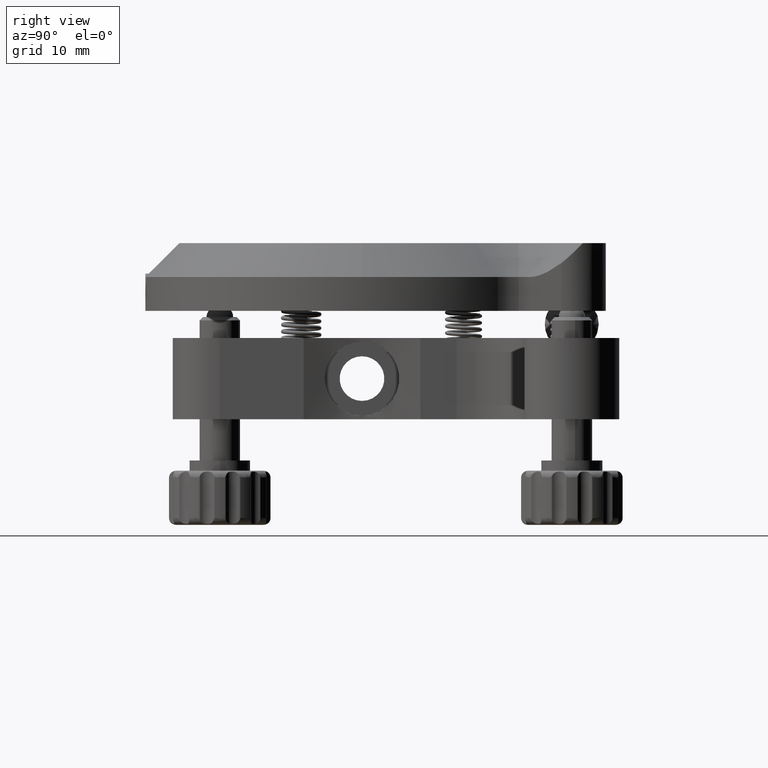
[diagram: clean part render]
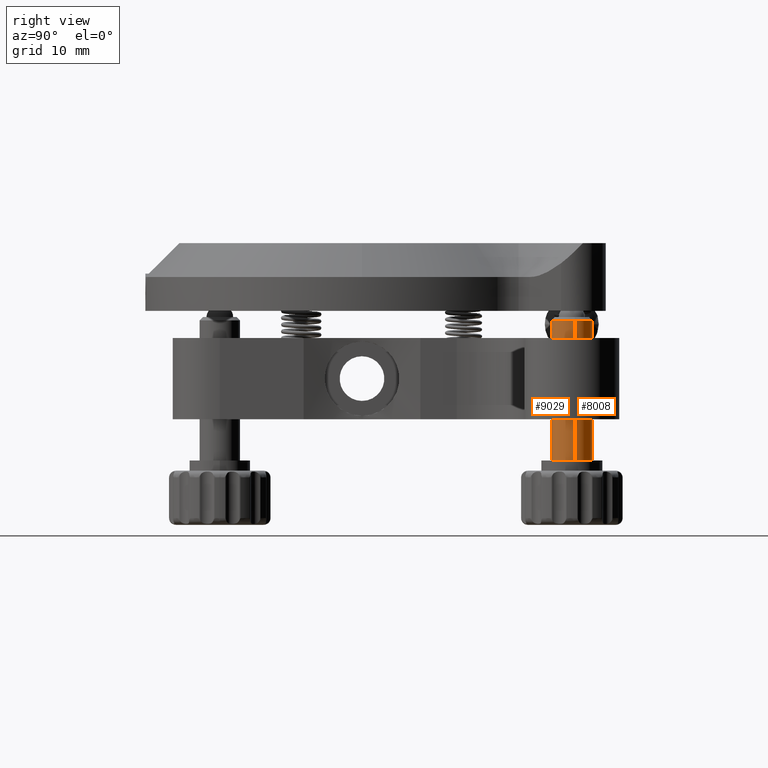
[diagram: same view with one multi-face feature highlighted, each face labeled with its STEP entity id]
A machine part, right view. The highlighted faces form ONE feature: a constant-radius fillet chain: 2 tangent blend faces with common blend radius 3 mm. The faces share edges in the B-rep.
Their STEP definitions:
[1] entity #9029 (Cylinder):
#1432 = DIRECTION ( 'NONE',  ( -1.102570378745549067E-15, -1.856712241625032305E-15, 1.000000000000000000 ) ) ;
#2994 = CIRCLE ( 'NONE', #23470, 3.000000000000021316 ) ;
#3304 = VERTEX_POINT ( 'NONE', #13952 ) ;
#4479 = VERTEX_POINT ( 'NONE', #17890 ) ;
#4553 = AXIS2_PLACEMENT_3D ( 'NONE', #21977, #11292, #27994 ) ;
#7208 = EDGE_LOOP ( 'NONE', ( #14159, #27358, #19025, #25224 ) ) ;
#9029 = ADVANCED_FACE ( 'NONE', ( #25208 ), #11796, .T. ) ;
#9489 = EDGE_CURVE ( 'NONE', #14984, #17880, #20336, .T. ) ;
#9504 = DIRECTION ( 'NONE',  ( -0.9882923927153827170, -0.1525717749156232095, 2.602085213965192103E-15 ) ) ;
#9679 = CARTESIAN_POINT ( 'NONE',  ( 54.96587717814597340, 0.4577153247468923047, -29.09999999999902798 ) ) ;
#10168 = VECTOR ( 'NONE', #1432, 1000.000000000000000 ) ;
#10754 = DIRECTION ( 'NONE',  ( -1.102570378745549067E-15, -1.856712241625032305E-15, 1.000000000000000000 ) ) ;
#10931 = CARTESIAN_POINT ( 'NONE',  ( 54.96587717814598051, 0.4577153247467377617, 30.53911735205626954 ) ) ;
#11292 = DIRECTION ( 'NONE',  ( -1.102570378745548870E-15, -1.856712241625032305E-15, 1.000000000000000000 ) ) ;
#11796 = CYLINDRICAL_SURFACE ( 'NONE', #19213, 3.000000000000021316 ) ;
#13952 = CARTESIAN_POINT ( 'NONE',  ( 49.03612282185367377, -0.4577153247469246122, -1.399999999999303579 ) ) ;
#14159 = ORIENTED_EDGE ( 'NONE', *, *, #31155, .F. ) ;
#14984 = VERTEX_POINT ( 'NONE', #26402 ) ;
#15018 = CARTESIAN_POINT ( 'NONE',  ( 52.00099999999982003, -5.815826785359246336E-16, -1.399999999999299360 ) ) ;
#16134 = DIRECTION ( 'NONE',  ( -1.102570378745548870E-15, -1.856712241625032305E-15, 1.000000000000000000 ) ) ;
#17880 = VERTEX_POINT ( 'NONE', #9679 ) ;
#17890 = CARTESIAN_POINT ( 'NONE',  ( 54.96587717814597340, 0.4577153247468144226, -1.399999999999295364 ) ) ;
#18089 = EDGE_CURVE ( 'NONE', #17880, #4479, #19195, .T. ) ;
#18145 = DIRECTION ( 'NONE',  ( 1.102570378745548870E-15, 1.856712241625032305E-15, -1.000000000000000000 ) ) ;
#19025 = ORIENTED_EDGE ( 'NONE', *, *, #18089, .T. ) ;
#19195 = LINE ( 'NONE', #10931, #29809 ) ;
#19213 = AXIS2_PLACEMENT_3D ( 'NONE', #20606, #16134, #32825 ) ;
#20336 = CIRCLE ( 'NONE', #4553, 3.000000000000021316 ) ;
#20606 = CARTESIAN_POINT ( 'NONE',  ( 52.00099999999981293, -1.350921483041953168E-13, 30.53911735205627664 ) ) ;
#21518 = CARTESIAN_POINT ( 'NONE',  ( 49.03612282185364535, -0.4577153247470076569, 30.53911735205628375 ) ) ;
#21977 = CARTESIAN_POINT ( 'NONE',  ( 52.00099999999980582, 1.946321733476572295E-14, -29.09999999999902087 ) ) ;
#23470 = AXIS2_PLACEMENT_3D ( 'NONE', #15018, #18145, #9504 ) ;
#25208 = FACE_OUTER_BOUND ( 'NONE', #7208, .T. ) ;
#25224 = ORIENTED_EDGE ( 'NONE', *, *, #35361, .T. ) ;
#26402 = CARTESIAN_POINT ( 'NONE',  ( 49.03612282185366666, -0.4577153247469262221, -29.09999999999902442 ) ) ;
#27358 = ORIENTED_EDGE ( 'NONE', *, *, #9489, .T. ) ;
#27994 = DIRECTION ( 'NONE',  ( 0.9882923927153827170, 0.1525717749156232095, -2.312964634635726489E-15 ) ) ;
#29790 = LINE ( 'NONE', #21518, #10168 ) ;
#29809 = VECTOR ( 'NONE', #10754, 1000.000000000000000 ) ;
#31155 = EDGE_CURVE ( 'NONE', #14984, #3304, #29790, .T. ) ;
#32825 = DIRECTION ( 'NONE',  ( 0.9882923927153827170, 0.1525717749156232095, -2.312964634635726489E-15 ) ) ;
#35361 = EDGE_CURVE ( 'NONE', #4479, #3304, #2994, .T. ) ;
[2] entity #8008 (Cylinder):
#83 = DIRECTION ( 'NONE',  ( 0.9882923927153827170, 0.1525717749156232095, -2.312964634635726489E-15 ) ) ;
#553 = CYLINDRICAL_SURFACE ( 'NONE', #5308, 3.000000000000021316 ) ;
#1432 = DIRECTION ( 'NONE',  ( -1.102570378745549067E-15, -1.856712241625032305E-15, 1.000000000000000000 ) ) ;
#3304 = VERTEX_POINT ( 'NONE', #13952 ) ;
#4479 = VERTEX_POINT ( 'NONE', #17890 ) ;
#5308 = AXIS2_PLACEMENT_3D ( 'NONE', #15525, #12926, #21547 ) ;
#5486 = EDGE_LOOP ( 'NONE', ( #16340, #12958, #20970, #11839 ) ) ;
#5875 = AXIS2_PLACEMENT_3D ( 'NONE', #22563, #30649, #83 ) ;
#8008 = ADVANCED_FACE ( 'NONE', ( #26163 ), #553, .T. ) ;
#9679 = CARTESIAN_POINT ( 'NONE',  ( 54.96587717814597340, 0.4577153247468923047, -29.09999999999902798 ) ) ;
#10168 = VECTOR ( 'NONE', #1432, 1000.000000000000000 ) ;
#10754 = DIRECTION ( 'NONE',  ( -1.102570378745549067E-15, -1.856712241625032305E-15, 1.000000000000000000 ) ) ;
#10931 = CARTESIAN_POINT ( 'NONE',  ( 54.96587717814598051, 0.4577153247467377617, 30.53911735205626954 ) ) ;
#11839 = ORIENTED_EDGE ( 'NONE', *, *, #18089, .F. ) ;
#12734 = EDGE_CURVE ( 'NONE', #17880, #14984, #35729, .T. ) ;
#12926 = DIRECTION ( 'NONE',  ( -1.102570378745548870E-15, -1.856712241625032305E-15, 1.000000000000000000 ) ) ;
#12958 = ORIENTED_EDGE ( 'NONE', *, *, #31155, .T. ) ;
#13952 = CARTESIAN_POINT ( 'NONE',  ( 49.03612282185367377, -0.4577153247469246122, -1.399999999999303579 ) ) ;
#14984 = VERTEX_POINT ( 'NONE', #26402 ) ;
#15507 = CIRCLE ( 'NONE', #16094, 3.000000000000021316 ) ;
#15525 = CARTESIAN_POINT ( 'NONE',  ( 52.00099999999981293, -1.350921483041953168E-13, 30.53911735205627664 ) ) ;
#16094 = AXIS2_PLACEMENT_3D ( 'NONE', #16953, #16107, #24551 ) ;
#16107 = DIRECTION ( 'NONE',  ( 1.102570378745548870E-15, 1.856712241625032305E-15, -1.000000000000000000 ) ) ;
#16340 = ORIENTED_EDGE ( 'NONE', *, *, #12734, .T. ) ;
#16953 = CARTESIAN_POINT ( 'NONE',  ( 52.00099999999982003, -5.815826785359246336E-16, -1.399999999999299360 ) ) ;
#17880 = VERTEX_POINT ( 'NONE', #9679 ) ;
#17890 = CARTESIAN_POINT ( 'NONE',  ( 54.96587717814597340, 0.4577153247468144226, -1.399999999999295364 ) ) ;
#18089 = EDGE_CURVE ( 'NONE', #17880, #4479, #19195, .T. ) ;
#19195 = LINE ( 'NONE', #10931, #29809 ) ;
#20970 = ORIENTED_EDGE ( 'NONE', *, *, #30927, .T. ) ;
#21518 = CARTESIAN_POINT ( 'NONE',  ( 49.03612282185364535, -0.4577153247470076569, 30.53911735205628375 ) ) ;
#21547 = DIRECTION ( 'NONE',  ( 0.9882923927153827170, 0.1525717749156232095, -2.312964634635726489E-15 ) ) ;
#22563 = CARTESIAN_POINT ( 'NONE',  ( 52.00099999999980582, 1.946321733476572295E-14, -29.09999999999902087 ) ) ;
#24551 = DIRECTION ( 'NONE',  ( -0.9882923927153827170, -0.1525717749156232095, 2.602085213965192103E-15 ) ) ;
#26163 = FACE_OUTER_BOUND ( 'NONE', #5486, .T. ) ;
#26402 = CARTESIAN_POINT ( 'NONE',  ( 49.03612282185366666, -0.4577153247469262221, -29.09999999999902442 ) ) ;
#29790 = LINE ( 'NONE', #21518, #10168 ) ;
#29809 = VECTOR ( 'NONE', #10754, 1000.000000000000000 ) ;
#30649 = DIRECTION ( 'NONE',  ( -1.102570378745548870E-15, -1.856712241625032305E-15, 1.000000000000000000 ) ) ;
#30927 = EDGE_CURVE ( 'NONE', #3304, #4479, #15507, .T. ) ;
#31155 = EDGE_CURVE ( 'NONE', #14984, #3304, #29790, .T. ) ;
#35729 = CIRCLE ( 'NONE', #5875, 3.000000000000021316 ) ;